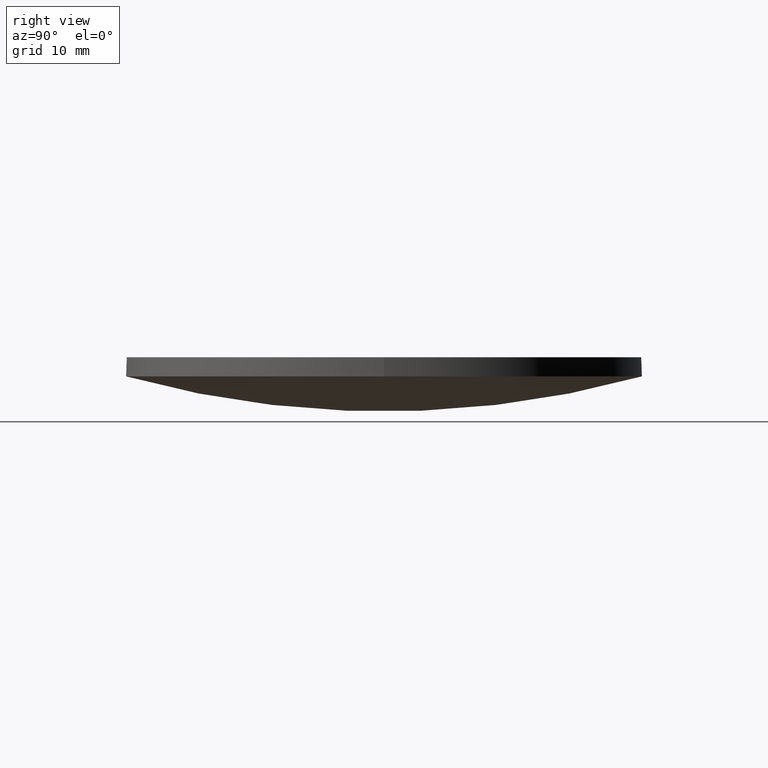
[diagram: clean part render]
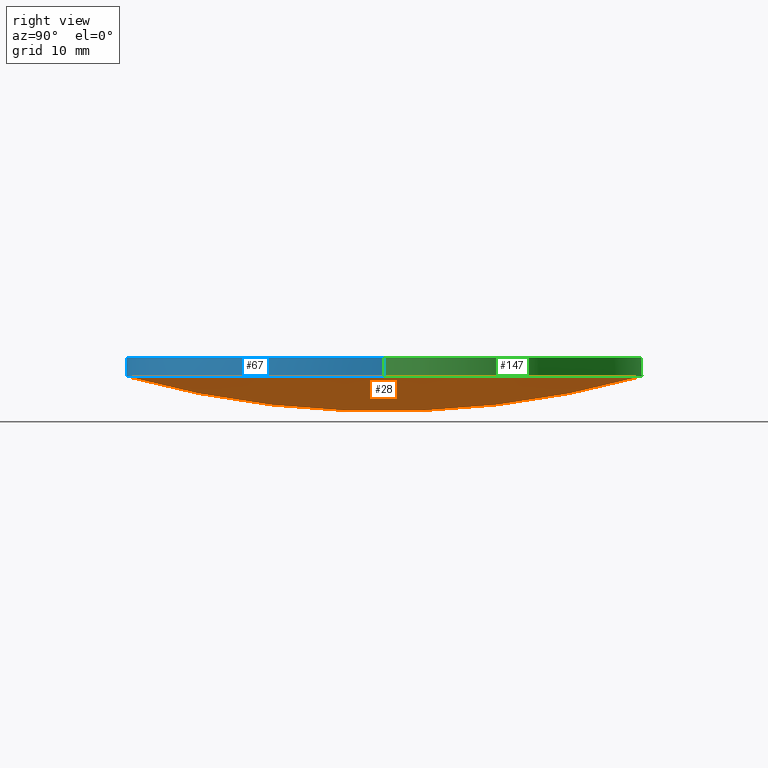
[diagram: same view with three faces highlighted in distinct colors, each labeled with its STEP entity id]
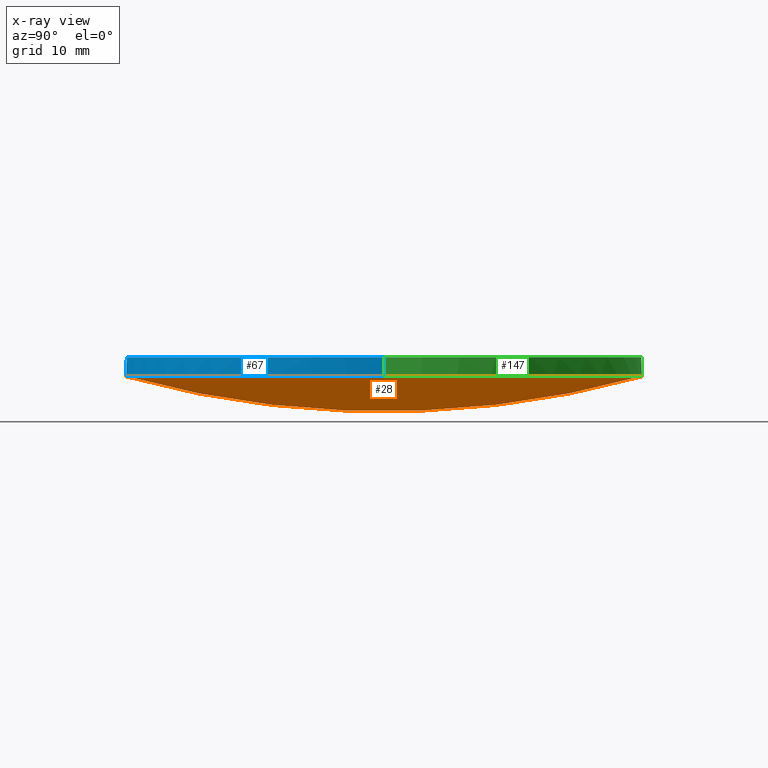
[diagram: x-ray of the same camera — body ghosted, the three highlighted faces saturated]
A machine part, right view with three faces highlighted in distinct colors.
The next image is the same camera in x-ray (body ghosted, the three faces saturated) — at least one of them is partly hidden behind the body in this view.
Their STEP definitions:

[orange] entity #28 — the highlighted face is a freeform B-spline surface patch.
#6 = AXIS2_PLACEMENT_3D ( 'NONE', #21, #32, #171 ) ;
#9 = CARTESIAN_POINT ( 'NONE',  ( 38.80917554072667000, -13.17463516135470900, 3.493141128107163600 ) ) ;
#11 = CARTESIAN_POINT ( 'NONE',  ( 2.827845306181674800E-014, -38.54582829949171700, 5.300694108275216400 ) ) ;
#18 = CARTESIAN_POINT ( 'NONE',  ( 2.830399681397611900E-014, 38.09999999999993700, 5.176491833698705100 ) ) ;
#21 = CARTESIAN_POINT ( 'NONE',  ( -9.325873406851310200E-015, -1.776356839400250100E-015, 5.176491833698710500 ) ) ;
#24 = CARTESIAN_POINT ( 'NONE',  ( 38.09999999999999400, -1.776356839400250100E-015, 5.176491833698709600 ) ) ;
#28 = ADVANCED_FACE ( 'NONE', ( #87 ), #71, .T. ) ;
#29 = ORIENTED_EDGE ( 'NONE', *, *, #209, .T. ) ;
#32 = DIRECTION ( 'NONE',  ( -2.331176954593499900E-017, -1.086877198725570000E-033, -1.000000000000000000 ) ) ;
#36 = VERTEX_POINT ( 'NONE', #24 ) ;
#45 = EDGE_CURVE ( 'NONE', #170, #74, #94, .T. ) ;
#58 = CARTESIAN_POINT ( 'NONE',  ( 0.0000000000000000000, -2.842170943040400100E-014, 142.8000000000000100 ) ) ;
#59 = CARTESIAN_POINT ( 'NONE',  ( 2.827845306181674200E-014, 38.54582829949168100, 5.300694108275244800 ) ) ;
#71 =( BOUNDED_SURFACE ( )  B_SPLINE_SURFACE ( 3, 3, ( 
 ( #11, #222, #193, #151 ),
 ( #207, #75, #112, #9 ),
 ( #131, #92, #224, #116 ),
 ( #59, #99, #210, #198 ) ),
 .UNSPECIFIED., .F., .F., .T. ) 
 B_SPLINE_SURFACE_WITH_KNOTS ( ( 4, 4 ),
 ( 4, 4 ),
 ( 0.0000000000000000000, 1.000000000000000000 ),
 ( 0.0000000000000000000, 1.000000000000000000 ),
 .UNSPECIFIED. ) 
 GEOMETRIC_REPRESENTATION_ITEM ( )  RATIONAL_B_SPLINE_SURFACE ( (
 ( 1.000000000000000000, 0.9938577781780347800, 0.9938577781780347800, 1.000000000000000000),
 ( 0.9752535289062782600, 0.9692633053990815700, 0.9692633053990815700, 0.9752535289062782600),
 ( 0.9752535289062782600, 0.9692633053990815700, 0.9692633053990815700, 0.9752535289062782600),
 ( 1.000000000000000000, 0.9938577781780347800, 0.9938577781780347800, 1.000000000000000000) ) ) 
 REPRESENTATION_ITEM ( '' )  SURFACE ( )  );
#74 = VERTEX_POINT ( 'NONE', #18 ) ;
#75 = CARTESIAN_POINT ( 'NONE',  ( 13.13738015587856700, -13.17463516135471300, -1.811732009904391000 ) ) ;
#76 = CIRCLE ( 'NONE', #6, 38.10000000000000100 ) ;
#87 = FACE_OUTER_BOUND ( 'NONE', #142, .T. ) ;
#92 = CARTESIAN_POINT ( 'NONE',  ( 13.13738015587856400, 13.17463516135467600, -1.811732009904365200 ) ) ;
#94 = CIRCLE ( 'NONE', #172, 142.7999999999999800 ) ;
#99 = CARTESIAN_POINT ( 'NONE',  ( 12.49124554116607500, 38.54582829949168900, 5.300694108275247500 ) ) ;
#112 = CARTESIAN_POINT ( 'NONE',  ( 26.15372125714176100, -13.17463516135471300, -0.03251260363729612700 ) ) ;
#116 = CARTESIAN_POINT ( 'NONE',  ( 38.80917554072666300, 13.17463516135467700, 3.493141128107187100 ) ) ;
#131 = CARTESIAN_POINT ( 'NONE',  ( 2.974121250510412600E-014, 13.17463516135467700, -1.811732009904367700 ) ) ;
#138 = ORIENTED_EDGE ( 'NONE', *, *, #45, .T. ) ;
#142 = EDGE_LOOP ( 'NONE', ( #228, #138, #29 ) ) ;
#144 = CARTESIAN_POINT ( 'NONE',  ( 2.830399681397611900E-014, -38.09999999999996600, 5.176491833698705100 ) ) ;
#151 = CARTESIAN_POINT ( 'NONE',  ( 36.90042726764757900, -38.54582829949171700, 10.34465813652077900 ) ) ;
#159 = DIRECTION ( 'NONE',  ( 0.0000000000000000000, -1.000000000000000000, 0.0000000000000000000 ) ) ;
#162 = DIRECTION ( 'NONE',  ( 1.000000000000000000, 0.0000000000000000000, 2.056625150099659900E-016 ) ) ;
#168 = DIRECTION ( 'NONE',  ( 1.000000000000000000, 0.0000000000000000000, -2.276539994720219300E-017 ) ) ;
#169 = CIRCLE ( 'NONE', #217, 38.10000000000000100 ) ;
#170 = VERTEX_POINT ( 'NONE', #144 ) ;
#171 = DIRECTION ( 'NONE',  ( 1.000000000000000000, 0.0000000000000000000, -2.276539994720219300E-017 ) ) ;
#172 = AXIS2_PLACEMENT_3D ( 'NONE', #58, #162, #159 ) ;
#190 = CARTESIAN_POINT ( 'NONE',  ( -9.325873406851310200E-015, -1.776356839400250100E-015, 5.176491833698710500 ) ) ;
#193 = CARTESIAN_POINT ( 'NONE',  ( 24.86740508091241300, -38.54582829949172400, 6.992406322703691200 ) ) ;
#198 = CARTESIAN_POINT ( 'NONE',  ( 36.90042726764757200, 38.54582829949168100, 10.34465813652080400 ) ) ;
#204 = DIRECTION ( 'NONE',  ( -2.331176954593499900E-017, -1.086877198725570000E-033, -1.000000000000000000 ) ) ;
#207 = CARTESIAN_POINT ( 'NONE',  ( 2.974121250510413300E-014, -13.17463516135470900, -1.811732009904393400 ) ) ;
#209 = EDGE_CURVE ( 'NONE', #74, #36, #169, .T. ) ;
#210 = CARTESIAN_POINT ( 'NONE',  ( 24.86740508091240900, 38.54582829949168900, 6.992406322703717900 ) ) ;
#212 = EDGE_CURVE ( 'NONE', #36, #170, #76, .T. ) ;
#217 = AXIS2_PLACEMENT_3D ( 'NONE', #190, #204, #168 ) ;
#222 = CARTESIAN_POINT ( 'NONE',  ( 12.49124554116607700, -38.54582829949172400, 5.300694108275219000 ) ) ;
#224 = CARTESIAN_POINT ( 'NONE',  ( 26.15372125714175800, 13.17463516135467600, -0.03251260363727141000 ) ) ;
#228 = ORIENTED_EDGE ( 'NONE', *, *, #212, .T. ) ;

[blue] entity #67 — the highlighted cylindrical surface (partial cylindrical patch) has radius 38.1 mm, axis along (0, 0, 1).
#1 = ORIENTED_EDGE ( 'NONE', *, *, #95, .T. ) ;
#4 = CARTESIAN_POINT ( 'NONE',  ( -38.10000000000000900, 2.889547465351166000E-015, 5.176491833698710500 ) ) ;
#6 = AXIS2_PLACEMENT_3D ( 'NONE', #21, #32, #171 ) ;
#10 = FACE_OUTER_BOUND ( 'NONE', #180, .T. ) ;
#15 = DIRECTION ( 'NONE',  ( 1.000000000000000000, 0.0000000000000000000, -4.553079989440438700E-017 ) ) ;
#21 = CARTESIAN_POINT ( 'NONE',  ( -9.325873406851310200E-015, -1.776356839400250100E-015, 5.176491833698710500 ) ) ;
#24 = CARTESIAN_POINT ( 'NONE',  ( 38.09999999999999400, -1.776356839400250100E-015, 5.176491833698709600 ) ) ;
#32 = DIRECTION ( 'NONE',  ( -2.331176954593499900E-017, -1.086877198725570000E-033, -1.000000000000000000 ) ) ;
#34 = CARTESIAN_POINT ( 'NONE',  ( 38.09999999999999400, -1.776356839400250100E-015, 7.999999999999998200 ) ) ;
#36 = VERTEX_POINT ( 'NONE', #24 ) ;
#40 = LINE ( 'NONE', #4, #105 ) ;
#41 = CARTESIAN_POINT ( 'NONE',  ( -9.260052435167430000E-015, -1.776356839400250100E-015, 8.000000000000000000 ) ) ;
#53 = VERTEX_POINT ( 'NONE', #155 ) ;
#64 = ORIENTED_EDGE ( 'NONE', *, *, #164, .F. ) ;
#67 = ADVANCED_FACE ( 'NONE', ( #10 ), #200, .T. ) ;
#68 = EDGE_CURVE ( 'NONE', #191, #185, #136, .T. ) ;
#76 = CIRCLE ( 'NONE', #6, 38.10000000000000100 ) ;
#80 = DIRECTION ( 'NONE',  ( 2.331176954593499900E-017, 1.086877198725570000E-033, 1.000000000000000000 ) ) ;
#81 = ORIENTED_EDGE ( 'NONE', *, *, #68, .T. ) ;
#82 = CARTESIAN_POINT ( 'NONE',  ( 38.09999999999999400, -1.776356839400250100E-015, 5.176491833698708700 ) ) ;
#85 = DIRECTION ( 'NONE',  ( 1.000000000000000000, 0.0000000000000000000, -2.276539994720219300E-017 ) ) ;
#95 = EDGE_CURVE ( 'NONE', #36, #191, #227, .T. ) ;
#104 = DIRECTION ( 'NONE',  ( 2.331176954593499900E-017, 1.086877198725570000E-033, 1.000000000000000000 ) ) ;
#105 = VECTOR ( 'NONE', #104, 1000.000000000000000 ) ;
#111 = CIRCLE ( 'NONE', #197, 38.10000000000000100 ) ;
#121 = AXIS2_PLACEMENT_3D ( 'NONE', #137, #80, #231 ) ;
#125 = EDGE_CURVE ( 'NONE', #170, #53, #111, .T. ) ;
#126 = CARTESIAN_POINT ( 'NONE',  ( -38.10000000000000900, 2.889547465351166000E-015, 8.000000000000001800 ) ) ;
#136 = CIRCLE ( 'NONE', #167, 38.10000000000000100 ) ;
#137 = CARTESIAN_POINT ( 'NONE',  ( -9.325873406851310200E-015, -1.776356839400250100E-015, 5.176491833698709600 ) ) ;
#140 = CARTESIAN_POINT ( 'NONE',  ( -9.325873406851310200E-015, -1.776356839400250100E-015, 5.176491833698710500 ) ) ;
#141 = DIRECTION ( 'NONE',  ( -2.331176954593499900E-017, -1.086877198725570000E-033, -1.000000000000000000 ) ) ;
#144 = CARTESIAN_POINT ( 'NONE',  ( 2.830399681397611900E-014, -38.09999999999996600, 5.176491833698705100 ) ) ;
#150 = VECTOR ( 'NONE', #181, 1000.000000000000000 ) ;
#153 = ORIENTED_EDGE ( 'NONE', *, *, #212, .F. ) ;
#155 = CARTESIAN_POINT ( 'NONE',  ( -38.10000000000000900, 2.889547465351166000E-015, 5.176491833698711400 ) ) ;
#164 = EDGE_CURVE ( 'NONE', #53, #185, #40, .T. ) ;
#167 = AXIS2_PLACEMENT_3D ( 'NONE', #41, #201, #15 ) ;
#170 = VERTEX_POINT ( 'NONE', #144 ) ;
#171 = DIRECTION ( 'NONE',  ( 1.000000000000000000, 0.0000000000000000000, -2.276539994720219300E-017 ) ) ;
#180 = EDGE_LOOP ( 'NONE', ( #64, #194, #153, #1, #81 ) ) ;
#181 = DIRECTION ( 'NONE',  ( 2.331176954593499900E-017, 1.086877198725570000E-033, 1.000000000000000000 ) ) ;
#185 = VERTEX_POINT ( 'NONE', #126 ) ;
#191 = VERTEX_POINT ( 'NONE', #34 ) ;
#194 = ORIENTED_EDGE ( 'NONE', *, *, #125, .F. ) ;
#197 = AXIS2_PLACEMENT_3D ( 'NONE', #140, #141, #85 ) ;
#200 = CYLINDRICAL_SURFACE ( 'NONE', #121, 38.10000000000000100 ) ;
#201 = DIRECTION ( 'NONE',  ( -2.331176954593499900E-017, -1.086877198725570000E-033, -1.000000000000000000 ) ) ;
#212 = EDGE_CURVE ( 'NONE', #36, #170, #76, .T. ) ;
#227 = LINE ( 'NONE', #82, #150 ) ;
#231 = DIRECTION ( 'NONE',  ( 1.000000000000000000, 0.0000000000000000000, -2.276539994720219300E-017 ) ) ;

[green] entity #147 — the highlighted cylindrical surface (partial cylindrical patch) has radius 38.1 mm, axis along (0, 0, 1).
#4 = CARTESIAN_POINT ( 'NONE',  ( -38.10000000000000900, 2.889547465351166000E-015, 5.176491833698710500 ) ) ;
#14 = DIRECTION ( 'NONE',  ( 1.000000000000000000, 0.0000000000000000000, -2.276539994720219300E-017 ) ) ;
#18 = CARTESIAN_POINT ( 'NONE',  ( 2.830399681397611900E-014, 38.09999999999993700, 5.176491833698705100 ) ) ;
#24 = CARTESIAN_POINT ( 'NONE',  ( 38.09999999999999400, -1.776356839400250100E-015, 5.176491833698709600 ) ) ;
#26 = ORIENTED_EDGE ( 'NONE', *, *, #178, .T. ) ;
#27 = CARTESIAN_POINT ( 'NONE',  ( -9.325873406851310200E-015, -1.776356839400250100E-015, 5.176491833698710500 ) ) ;
#34 = CARTESIAN_POINT ( 'NONE',  ( 38.09999999999999400, -1.776356839400250100E-015, 7.999999999999998200 ) ) ;
#36 = VERTEX_POINT ( 'NONE', #24 ) ;
#37 = ORIENTED_EDGE ( 'NONE', *, *, #164, .T. ) ;
#40 = LINE ( 'NONE', #4, #105 ) ;
#42 = DIRECTION ( 'NONE',  ( -2.331176954593499900E-017, -1.086877198725570000E-033, -1.000000000000000000 ) ) ;
#51 = CARTESIAN_POINT ( 'NONE',  ( -9.260052435167430000E-015, -1.776356839400250100E-015, 8.000000000000000000 ) ) ;
#53 = VERTEX_POINT ( 'NONE', #155 ) ;
#60 = CYLINDRICAL_SURFACE ( 'NONE', #134, 38.10000000000000100 ) ;
#74 = VERTEX_POINT ( 'NONE', #18 ) ;
#82 = CARTESIAN_POINT ( 'NONE',  ( 38.09999999999999400, -1.776356839400250100E-015, 5.176491833698708700 ) ) ;
#83 = DIRECTION ( 'NONE',  ( 1.000000000000000000, 0.0000000000000000000, -2.276539994720219300E-017 ) ) ;
#91 = DIRECTION ( 'NONE',  ( -2.331176954593499900E-017, -1.086877198725570000E-033, -1.000000000000000000 ) ) ;
#95 = EDGE_CURVE ( 'NONE', #36, #191, #227, .T. ) ;
#101 = CARTESIAN_POINT ( 'NONE',  ( -9.325873406851310200E-015, -1.776356839400250100E-015, 5.176491833698709600 ) ) ;
#103 = ORIENTED_EDGE ( 'NONE', *, *, #115, .F. ) ;
#104 = DIRECTION ( 'NONE',  ( 2.331176954593499900E-017, 1.086877198725570000E-033, 1.000000000000000000 ) ) ;
#105 = VECTOR ( 'NONE', #104, 1000.000000000000000 ) ;
#115 = EDGE_CURVE ( 'NONE', #53, #74, #158, .T. ) ;
#117 = ORIENTED_EDGE ( 'NONE', *, *, #209, .F. ) ;
#123 = DIRECTION ( 'NONE',  ( 2.331176954593499900E-017, 1.086877198725570000E-033, 1.000000000000000000 ) ) ;
#126 = CARTESIAN_POINT ( 'NONE',  ( -38.10000000000000900, 2.889547465351166000E-015, 8.000000000000001800 ) ) ;
#133 = ORIENTED_EDGE ( 'NONE', *, *, #95, .F. ) ;
#134 = AXIS2_PLACEMENT_3D ( 'NONE', #101, #123, #83 ) ;
#147 = ADVANCED_FACE ( 'NONE', ( #213 ), #60, .T. ) ;
#150 = VECTOR ( 'NONE', #181, 1000.000000000000000 ) ;
#155 = CARTESIAN_POINT ( 'NONE',  ( -38.10000000000000900, 2.889547465351166000E-015, 5.176491833698711400 ) ) ;
#158 = CIRCLE ( 'NONE', #225, 38.10000000000000100 ) ;
#164 = EDGE_CURVE ( 'NONE', #53, #185, #40, .T. ) ;
#168 = DIRECTION ( 'NONE',  ( 1.000000000000000000, 0.0000000000000000000, -2.276539994720219300E-017 ) ) ;
#169 = CIRCLE ( 'NONE', #217, 38.10000000000000100 ) ;
#175 = AXIS2_PLACEMENT_3D ( 'NONE', #51, #91, #188 ) ;
#178 = EDGE_CURVE ( 'NONE', #185, #191, #206, .T. ) ;
#181 = DIRECTION ( 'NONE',  ( 2.331176954593499900E-017, 1.086877198725570000E-033, 1.000000000000000000 ) ) ;
#185 = VERTEX_POINT ( 'NONE', #126 ) ;
#188 = DIRECTION ( 'NONE',  ( 1.000000000000000000, 0.0000000000000000000, -4.553079989440438700E-017 ) ) ;
#190 = CARTESIAN_POINT ( 'NONE',  ( -9.325873406851310200E-015, -1.776356839400250100E-015, 5.176491833698710500 ) ) ;
#191 = VERTEX_POINT ( 'NONE', #34 ) ;
#204 = DIRECTION ( 'NONE',  ( -2.331176954593499900E-017, -1.086877198725570000E-033, -1.000000000000000000 ) ) ;
#206 = CIRCLE ( 'NONE', #175, 38.10000000000000100 ) ;
#208 = EDGE_LOOP ( 'NONE', ( #103, #37, #26, #133, #117 ) ) ;
#209 = EDGE_CURVE ( 'NONE', #74, #36, #169, .T. ) ;
#213 = FACE_OUTER_BOUND ( 'NONE', #208, .T. ) ;
#217 = AXIS2_PLACEMENT_3D ( 'NONE', #190, #204, #168 ) ;
#225 = AXIS2_PLACEMENT_3D ( 'NONE', #27, #42, #14 ) ;
#227 = LINE ( 'NONE', #82, #150 ) ;